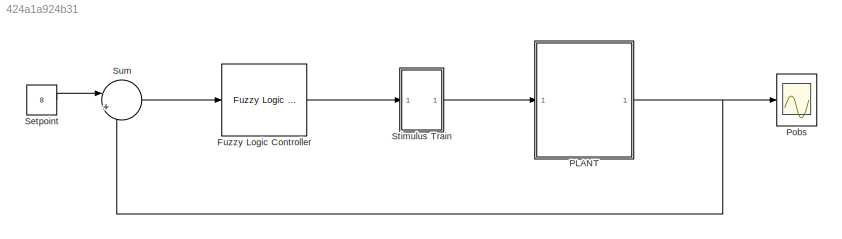
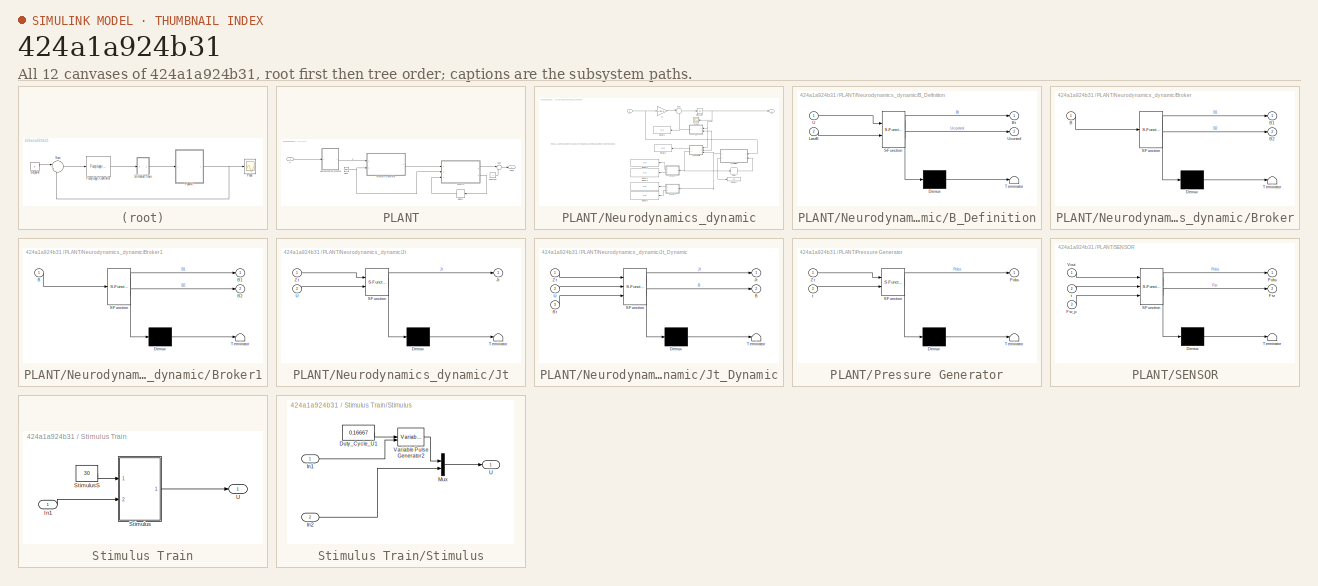
[diagram: thumbnail index - all 12 canvases of the model, root first then tree order]
MODEL slx_424a1a924b31
KIND model
CONFIG AbsTol = auto
CONFIG EnableMultiTasking = off
CONFIG FixedStep = auto
CONFIG MaxStep = auto
CONFIG MinStep = auto
CONFIG RelTol = 1e-3
CONFIG SampleTimeConstraint = Unconstrained
CONFIG SolverName = VariableStepAuto
CONFIG StartTime = 0.0
CONFIG StopTime = 75
BLOCK [Reference] Fuzzy Logic Controller  REF=fuzblock/Fuzzy Logic   (lib defined in mdl_858b3b3e7478)
Controller
  Ports = [1, 1]
  SourceBlock = fuzblock/Fuzzy Logic \nController
  SourceProductBaseCode = FL
  SourceType = Fuzzy Inference System
BLOCK [SubSystem] PLANT
  Ports = [1, 1]
  RequestExecContextInheritance = off
BLOCK [Clock] PLANT/Clock
BLOCK [Constant] PLANT/Constant
  Value = -1
BLOCK [Delay] PLANT/Delay2
  DelayLength = 1
  InitialCondition = 0.0001
  InputPortMap = u0
  Ports = [1, 1]
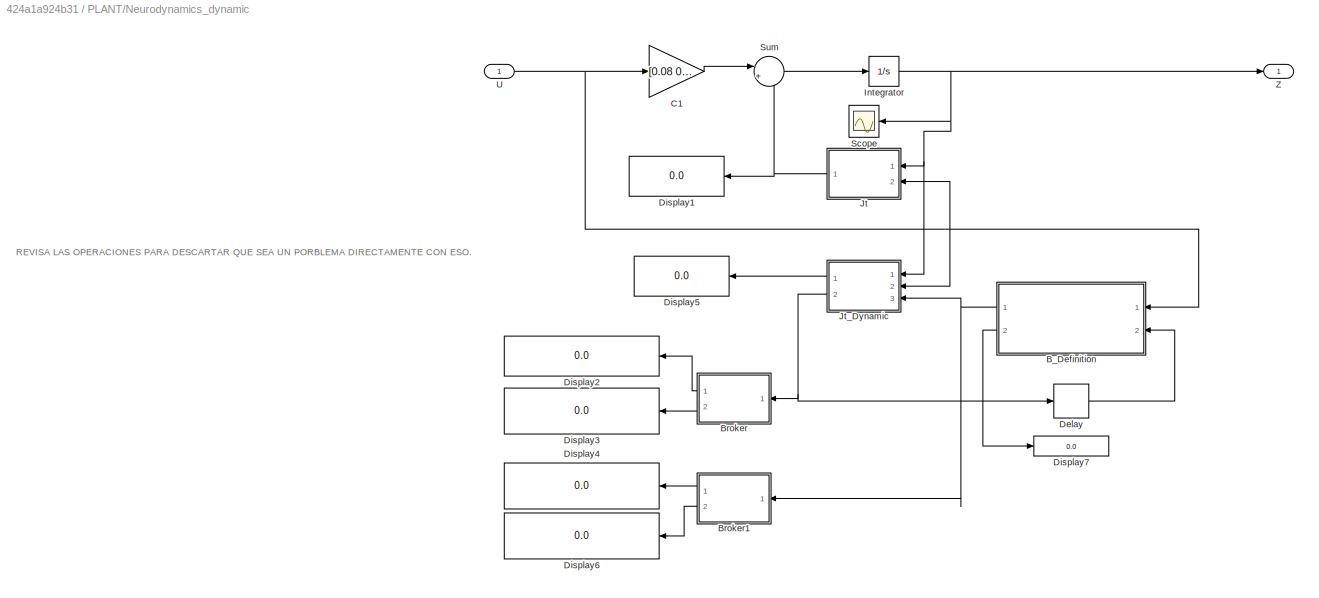
BLOCK [SubSystem] PLANT/Neurodynamics_dynamic
  Ports = [1, 1]
  RequestExecContextInheritance = off
BLOCK [SubSystem] PLANT/Neurodynamics_dynamic/B_Definition
  Commented = on
  ErrorFcn = Stateflow.Translate.translate
  PermitHierarchicalResolution = ExplicitOnly
  Ports = [2, 2]
  RequestExecContextInheritance = off
  SFBlockType = MATLAB Function
  TreatAsAtomicUnit = on
BLOCK [Demux] PLANT/Neurodynamics_dynamic/B_Definition/ Demux 
  Outputs = 1
  Ports = [1, 1]
BLOCK [S-Function] PLANT/Neurodynamics_dynamic/B_Definition/ SFunction 
  EnableBusSupport = on
  FunctionName = sf_sfun
  PortCounts = [2 3]
  Ports = [2, 3]
  SFcnIsStateOwnerBlock = off
  SFunctionDeploymentMode = off
  Tag = Stateflow S-Function 10
BLOCK [Terminator] PLANT/Neurodynamics_dynamic/B_Definition/ Terminator 
BLOCK [Outport] PLANT/Neurodynamics_dynamic/B_Definition/Bt
BLOCK [Inport] PLANT/Neurodynamics_dynamic/B_Definition/LastB
  Port = 2
BLOCK [Inport] PLANT/Neurodynamics_dynamic/B_Definition/U
BLOCK [Outport] PLANT/Neurodynamics_dynamic/B_Definition/Ucontrol
  Port = 2
BLOCK [SubSystem] PLANT/Neurodynamics_dynamic/Broker
  Commented = on
  ErrorFcn = Stateflow.Translate.translate
  PermitHierarchicalResolution = ExplicitOnly
  Ports = [1, 2]
  RequestExecContextInheritance = off
  SFBlockType = MATLAB Function
  TreatAsAtomicUnit = on
BLOCK [Demux] PLANT/Neurodynamics_dynamic/Broker/ Demux 
  Outputs = 1
  Ports = [1, 1]
BLOCK [S-Function] PLANT/Neurodynamics_dynamic/Broker/ SFunction 
  EnableBusSupport = on
  FunctionName = sf_sfun
  PortCounts = [1 3]
  Ports = [1, 3]
  SFcnIsStateOwnerBlock = off
  SFunctionDeploymentMode = off
  Tag = Stateflow S-Function 3
BLOCK [Terminator] PLANT/Neurodynamics_dynamic/Broker/ Terminator 
BLOCK [Inport] PLANT/Neurodynamics_dynamic/Broker/B
BLOCK [Outport] PLANT/Neurodynamics_dynamic/Broker/B1
BLOCK [Outport] PLANT/Neurodynamics_dynamic/Broker/B2
  Port = 2
BLOCK [SubSystem] PLANT/Neurodynamics_dynamic/Broker1
  Commented = on
  ErrorFcn = Stateflow.Translate.translate
  PermitHierarchicalResolution = ExplicitOnly
  Ports = [1, 2]
  RequestExecContextInheritance = off
  SFBlockType = MATLAB Function
  TreatAsAtomicUnit = on
BLOCK [Demux] PLANT/Neurodynamics_dynamic/Broker1/ Demux 
  Outputs = 1
  Ports = [1, 1]
BLOCK [S-Function] PLANT/Neurodynamics_dynamic/Broker1/ SFunction 
  EnableBusSupport = on
  FunctionName = sf_sfun
  PortCounts = [1 3]
  Ports = [1, 3]
  SFcnIsStateOwnerBlock = off
  SFunctionDeploymentMode = off
  Tag = Stateflow S-Function 6
BLOCK [Terminator] PLANT/Neurodynamics_dynamic/Broker1/ Terminator 
BLOCK [Inport] PLANT/Neurodynamics_dynamic/Broker1/B
BLOCK [Outport] PLANT/Neurodynamics_dynamic/Broker1/B1
BLOCK [Outport] PLANT/Neurodynamics_dynamic/Broker1/B2
  Port = 2
BLOCK [Gain] PLANT/Neurodynamics_dynamic/C1
  Gain = [0.08 0;0.06 0]
  Multiplication = Matrix(K*u)
BLOCK [Delay] PLANT/Neurodynamics_dynamic/Delay
  Commented = on
  DelayLength = 1
  InitialCondition = 0
  InputPortMap = u0
  NameLocation = top
  Ports = [1, 1]
BLOCK [Display] PLANT/Neurodynamics_dynamic/Display1
  Decimation = 1
  Ports = [1]
BLOCK [Display] PLANT/Neurodynamics_dynamic/Display2
  Commented = on
  Decimation = 1
  Ports = [1]
BLOCK [Display] PLANT/Neurodynamics_dynamic/Display3
  Commented = on
  Decimation = 1
  Ports = [1]
BLOCK [Display] PLANT/Neurodynamics_dynamic/Display4
  Commented = on
  Decimation = 1
  Ports = [1]
BLOCK [Display] PLANT/Neurodynamics_dynamic/Display5
  Commented = on
  Decimation = 1
  Ports = [1]
BLOCK [Display] PLANT/Neurodynamics_dynamic/Display6
  Commented = on
  Decimation = 1
  Ports = [1]
BLOCK [Display] PLANT/Neurodynamics_dynamic/Display7
  Commented = on
  Decimation = 1
  Ports = [1]
BLOCK [Integrator] PLANT/Neurodynamics_dynamic/Integrator
  Ports = [1, 1]
BLOCK [SubSystem] PLANT/Neurodynamics_dynamic/Jt
  ErrorFcn = Stateflow.Translate.translate
  PermitHierarchicalResolution = ExplicitOnly
  Ports = [2, 1]
  RequestExecContextInheritance = off
  SFBlockType = MATLAB Function
  TreatAsAtomicUnit = on
BLOCK [Demux] PLANT/Neurodynamics_dynamic/Jt/ Demux 
  Outputs = 1
  Ports = [1, 1]
BLOCK [S-Function] PLANT/Neurodynamics_dynamic/Jt/ SFunction 
  EnableBusSupport = on
  FunctionName = sf_sfun
  PortCounts = [2 2]
  Ports = [2, 2]
  SFcnIsStateOwnerBlock = off
  SFunctionDeploymentMode = off
  Tag = Stateflow S-Function 11
BLOCK [Terminator] PLANT/Neurodynamics_dynamic/Jt/ Terminator 
BLOCK [Outport] PLANT/Neurodynamics_dynamic/Jt/Jt
BLOCK [Inport] PLANT/Neurodynamics_dynamic/Jt/U
  Port = 2
BLOCK [Inport] PLANT/Neurodynamics_dynamic/Jt/Zt
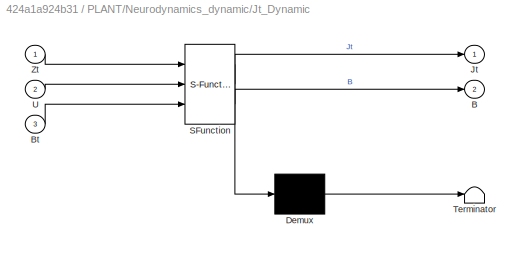
BLOCK [SubSystem] PLANT/Neurodynamics_dynamic/Jt_Dynamic
  Commented = on
  ErrorFcn = Stateflow.Translate.translate
  PermitHierarchicalResolution = ExplicitOnly
  Ports = [3, 2]
  RequestExecContextInheritance = off
  SFBlockType = MATLAB Function
  TreatAsAtomicUnit = on
BLOCK [Demux] PLANT/Neurodynamics_dynamic/Jt_Dynamic/ Demux 
  Outputs = 1
  Ports = [1, 1]
BLOCK [S-Function] PLANT/Neurodynamics_dynamic/Jt_Dynamic/ SFunction 
  EnableBusSupport = on
  FunctionName = sf_sfun
  PortCounts = [3 3]
  Ports = [3, 3]
  SFcnIsStateOwnerBlock = off
  SFunctionDeploymentMode = off
  Tag = Stateflow S-Function 9
BLOCK [Terminator] PLANT/Neurodynamics_dynamic/Jt_Dynamic/ Terminator 
BLOCK [Outport] PLANT/Neurodynamics_dynamic/Jt_Dynamic/B
  Port = 2
BLOCK [Inport] PLANT/Neurodynamics_dynamic/Jt_Dynamic/Bt
  Port = 3
BLOCK [Outport] PLANT/Neurodynamics_dynamic/Jt_Dynamic/Jt
BLOCK [Inport] PLANT/Neurodynamics_dynamic/Jt_Dynamic/U
  Port = 2
BLOCK [Inport] PLANT/Neurodynamics_dynamic/Jt_Dynamic/Zt
BLOCK [Scope] PLANT/Neurodynamics_dynamic/Scope
  Floating = off
  NumInputPorts = 1
  Ports = [1]
  ScopeSpecificationString = Simulink.scopes.TimeScopeBlockCfg('CurrentConfiguration', extmgr.ConfigurationSet(extmgr.Configuration('Core','General UI',true),extmgr.Configuration('Core','Source UI',true),extmgr.Configuration('Sources','WiredSimulink',true,'DataLoggingVariableName','ScopeData1'),extmgr.Configuration('Visuals','Time Domain',true,'SerializedDisplays',{struct('MinYLimReal','-270.33117','MaxYLimReal','30.99894','Y...<+1427ch>
BLOCK [Sum] PLANT/Neurodynamics_dynamic/Sum
  Inputs = |++
  Ports = [2, 1]
BLOCK [Inport] PLANT/Neurodynamics_dynamic/U
BLOCK [Outport] PLANT/Neurodynamics_dynamic/Z
BLOCK [Outport] PLANT/Pobs
BLOCK [SubSystem] PLANT/Pressure Generator
  ErrorFcn = Stateflow.Translate.translate
  PermitHierarchicalResolution = ExplicitOnly
  Ports = [2, 1]
  RequestExecContextInheritance = off
  SFBlockType = MATLAB Function
  TreatAsAtomicUnit = on
BLOCK [Demux] PLANT/Pressure Generator/ Demux 
  Outputs = 1
  Ports = [1, 1]
BLOCK [S-Function] PLANT/Pressure Generator/ SFunction 
  EnableBusSupport = on
  FunctionName = sf_sfun
  PortCounts = [2 2]
  Ports = [2, 2]
  SFcnIsStateOwnerBlock = off
  SFunctionDeploymentMode = off
  Tag = Stateflow S-Function 2
BLOCK [Terminator] PLANT/Pressure Generator/ Terminator 
BLOCK [Outport] PLANT/Pressure Generator/Pobs
BLOCK [Inport] PLANT/Pressure Generator/Zt
BLOCK [Inport] PLANT/Pressure Generator/t
  Port = 2
BLOCK [SubSystem] PLANT/SENSOR
  ErrorFcn = Stateflow.Translate.translate
  PermitHierarchicalResolution = ExplicitOnly
  Ports = [3, 2]
  RequestExecContextInheritance = off
  SFBlockType = MATLAB Function
  TreatAsAtomicUnit = on
BLOCK [Demux] PLANT/SENSOR/ Demux 
  Outputs = 1
  Ports = [1, 1]
BLOCK [S-Function] PLANT/SENSOR/ SFunction 
  EnableBusSupport = on
  FunctionName = sf_sfun
  PortCounts = [3 3]
  Ports = [3, 3]
  SFcnIsStateOwnerBlock = off
  SFunctionDeploymentMode = off
  Tag = Stateflow S-Function 1
BLOCK [Terminator] PLANT/SENSOR/ Terminator 
BLOCK [Outport] PLANT/SENSOR/Fsr
  Port = 2
BLOCK [Inport] PLANT/SENSOR/Fsr_p
  Port = 3
BLOCK [Outport] PLANT/SENSOR/Pobs
BLOCK [Inport] PLANT/SENSOR/Vout
BLOCK [Inport] PLANT/SENSOR/t
  Port = 2
BLOCK [Sum] PLANT/Sum
  Inputs = |+-
  Ports = [2, 1]
BLOCK [Inport] PLANT/U
BLOCK [Scope] Pobs
  Floating = off
  NumInputPorts = 1
  Ports = [1]
  ScopeSpecificationString = Simulink.scopes.TimeScopeBlockCfg('CurrentConfiguration', extmgr.ConfigurationSet(extmgr.Configuration('Core','General UI',true,'FigureColor',[1 1 1]),extmgr.Configuration('Core','Source UI',true),extmgr.Configuration('Sources','WiredSimulink',true,'DataLoggingVariableName','ScopeData2'),extmgr.Configuration('Visuals','Time Domain',true,'SerializedDisplays',{struct('MinYLimReal','-1.2817','MaxYLim...<+1535ch>
BLOCK [Constant] Setpoint
  Value = 8
BLOCK [SubSystem] Stimulus Train
  Ports = [1, 1]
  RequestExecContextInheritance = off
BLOCK [Inport] Stimulus Train/In1
BLOCK [SubSystem] Stimulus Train/Stimulus
  Ports = [2, 1]
  RequestExecContextInheritance = off
BLOCK [Constant] Stimulus Train/Stimulus/Duty_Cycle_U1
  OutMax = [0.8]
  OutMin = [0]
  Value = 0.16667
BLOCK [Inport] Stimulus Train/Stimulus/In1
BLOCK [Inport] Stimulus Train/Stimulus/In2
  Port = 2
BLOCK [Mux] Stimulus Train/Stimulus/Mux
  DisplayOption = bar
  Inputs = 2
  Ports = [2, 1]
BLOCK [Outport] Stimulus Train/Stimulus/U
BLOCK [VariablePulseGenerator] Stimulus Train/Stimulus/Variable Pulse Generator2
  RunAtFixedTimeIntervals = on
  SampleTime = 1/10.4
BLOCK [Constant] Stimulus Train/StimulusS
  Value = 30
BLOCK [Outport] Stimulus Train/U
BLOCK [Sum] Sum
  Inputs = |+-
  Ports = [2, 1]
ANNOTATION PLANT/Neurodynamics_dynamic: REVISA LAS OPERACIONES PARA DESCARTAR QUE SEA UN PORBLEMA DIRECTAMENTE CON ESO.
LINE Fuzzy Logic Controller:1 -> Stimulus Train:1
NET PLANT/Clock:1 -> PLANT/Pressure Generator:2, PLANT/SENSOR:2
LINE PLANT/Constant:1 -> PLANT/Sum:2
LINE PLANT/Delay2:1 -> PLANT/SENSOR:3
NET PLANT/Neurodynamics_dynamic/B_Definition:1 -> PLANT/Neurodynamics_dynamic/Broker1:1, PLANT/Neurodynamics_dynamic/Jt_Dynamic:3
LINE PLANT/Neurodynamics_dynamic/B_Definition:2 -> PLANT/Neurodynamics_dynamic/Display7:1
LINE PLANT/Neurodynamics_dynamic/Broker1:1 -> PLANT/Neurodynamics_dynamic/Display4:1
LINE PLANT/Neurodynamics_dynamic/Broker1:2 -> PLANT/Neurodynamics_dynamic/Display6:1
LINE PLANT/Neurodynamics_dynamic/Broker:1 -> PLANT/Neurodynamics_dynamic/Display2:1
LINE PLANT/Neurodynamics_dynamic/Broker:2 -> PLANT/Neurodynamics_dynamic/Display3:1
LINE PLANT/Neurodynamics_dynamic/C1:1 -> PLANT/Neurodynamics_dynamic/Sum:1
LINE PLANT/Neurodynamics_dynamic/Delay:1 -> PLANT/Neurodynamics_dynamic/B_Definition:2
NET PLANT/Neurodynamics_dynamic/Integrator:1 -> PLANT/Neurodynamics_dynamic/Jt:1, PLANT/Neurodynamics_dynamic/Jt_Dynamic:1, PLANT/Neurodynamics_dynamic/Scope:1, PLANT/Neurodynamics_dynamic/Z:1
NET PLANT/Neurodynamics_dynamic/Jt:1 -> PLANT/Neurodynamics_dynamic/Display1:1, PLANT/Neurodynamics_dynamic/Sum:2
LINE PLANT/Neurodynamics_dynamic/Jt_Dynamic:1 -> PLANT/Neurodynamics_dynamic/Display5:1
NET PLANT/Neurodynamics_dynamic/Jt_Dynamic:2 -> PLANT/Neurodynamics_dynamic/Broker:1, PLANT/Neurodynamics_dynamic/Delay:1
LINE PLANT/Neurodynamics_dynamic/Sum:1 -> PLANT/Neurodynamics_dynamic/Integrator:1
NET PLANT/Neurodynamics_dynamic/U:1 -> PLANT/Neurodynamics_dynamic/B_Definition:1, PLANT/Neurodynamics_dynamic/C1:1, PLANT/Neurodynamics_dynamic/Jt:2, PLANT/Neurodynamics_dynamic/Jt_Dynamic:2
LINE PLANT/Neurodynamics_dynamic:1 -> PLANT/Pressure Generator:1
LINE PLANT/Pressure Generator:1 -> PLANT/SENSOR:1
LINE PLANT/SENSOR:1 -> PLANT/Sum:1
LINE PLANT/SENSOR:2 -> PLANT/Delay2:1
LINE PLANT/Sum:1 -> PLANT/Pobs:1
LINE PLANT/U:1 -> PLANT/Neurodynamics_dynamic:1
NET PLANT:1 -> Pobs:1, Sum:2
LINE Setpoint:1 -> Sum:1
LINE Stimulus Train/In1:1 -> Stimulus Train/Stimulus:2
LINE Stimulus Train/Stimulus/Duty_Cycle_U1:1 -> Stimulus Train/Stimulus/Variable Pulse Generator2:1
LINE Stimulus Train/Stimulus/In1:1 -> Stimulus Train/Stimulus/Variable Pulse Generator2:2
LINE Stimulus Train/Stimulus/In2:1 -> Stimulus Train/Stimulus/Mux:2
LINE Stimulus Train/Stimulus/Mux:1 -> Stimulus Train/Stimulus/U:1
LINE Stimulus Train/Stimulus/Variable Pulse Generator2:1 -> Stimulus Train/Stimulus/Mux:1
LINE Stimulus Train/Stimulus:1 -> Stimulus Train/U:1
LINE Stimulus Train/StimulusS:1 -> Stimulus Train/Stimulus:1
LINE Stimulus Train:1 -> PLANT:1
LINE Sum:1 -> Fuzzy Logic Controller:1
note: NET lines group one-source signal fan-out (src -> all destinations, sorted); 1:1 wires keep LINE
CHART PLANT/SENSOR states=1 transitions=1
  STATE_LABEL 'eML_blk_kernel()'
  STATE_LABEL 'SCRIPT:\nfunction [Pobs,Fsr] = PressureGenerator_sensor(Vout, t,Fsr_p)\n\n    Vcc = 50; %Considering 5V as a real sensor, the value is on mV\n    Rf = 100; %Fixed resistor 10k ohms\n    kgf = 0.1019716213; % 1N = 0.1019716213 kgf\n    Fsr = 0;\n    Fsrforce = 0;\n  \n    Fsr = (Vcc - Vout * Rf) / Vout;\n    FsConductance = 1000000; %Sensor conductance in uOhms\n    FsConductance = FsConductance / Fsr;\n    if...<+221ch>'
CHART PLANT/Pressure Generator states=1 transitions=1
  STATE_LABEL 'eML_blk_kernel()'
  STATE_LABEL 'SCRIPT:\nfunction Pobs  = fcn(Zt, t)\n    R=1000; %Resistor [Ohms];\n    C= 2; %Capacitor [Faradays];\n    V= Zt(1); %Voltage or system reference;\n    Vc = V * (exp(-t/(R*C))); % Voltage at the capacitor  \n    \nPobs = Vc;\n'
CHART PLANT/Neurodynamics_dynamic/Broker states=1 transitions=1
  STATE_LABEL 'eML_blk_kernel()'
  STATE_LABEL 'SCRIPT:\nfunction [B1, B2] = fcn(B)\nB1 = B(:,:,1);\nB2 = B(:,:,2);'
CHART PLANT/Neurodynamics_dynamic/Broker1 states=1 transitions=1
  STATE_LABEL 'eML_blk_kernel()'
  STATE_LABEL 'SCRIPT:\nfunction [B1, B2] = fcn(B)\nB1 = B(:,:,1);\nB2 = B(:,:,2);'
CHART PLANT/Neurodynamics_dynamic/Jt_Dynamic states=1 transitions=1
  STATE_LABEL 'eML_blk_kernel()'
  STATE_LABEL 'SCRIPT:\nfunction [Jt, B] = fcn(Zt, U, Bt)\n\n   A = [-0.16 -0.49;-0.02 -0.33];\n   nRegions  = size(A,1);\n\n   B = zeros(2,2,2);\n   a = 0;\n   B1 = [0 0; 0 0]; %There must be a B per stimulus\n   B2 = [-0.02 -0.77; 0.33 -1.31];\n\n   if Bt(:,:,2) ~= B(:,:,2)\n       B(:,:,:) = Bt(:,:,:);\n   else\n          B(:,:,1) = B1;\n          B(:,:,2) = B2;\n   end\n   M = size(U,1); %nStimuli\n   assert(M == size(B,3),.....<+453ch>'
CHART PLANT/Neurodynamics_dynamic/B_Definition states=1 transitions=1
  STATE_LABEL 'eML_blk_kernel()'
  STATE_LABEL 'SCRIPT:\nfunction [Bt, Ucontrol] = B_Definition(U, LastB)\n    Bt = zeros(2, 2, 2);\n   %Control extraction and weight\n   Ucontrol = U(2) * (0.1 + rand(1) * (1-0.1));\n   Threshold = 0.1;\n    if(Ucontrol < Threshold) %Random Ucontrol to test\n        min = -1.5; \n        max =0.5;\n        n = 2;\n        r1 = min + rand(n)*(max-min);\n        r2 = min + rand(n)*(max-min);\n        %Bt(:,:,1) = r1(:,:);\n  ...<+70ch>'
CHART PLANT/Neurodynamics_dynamic/Jt states=1 transitions=1
  STATE_LABEL 'eML_blk_kernel()'
  STATE_LABEL "SCRIPT:\nfunction Jt = fcn(Zt, U)\n   A = [-0.16 -0.49;-0.02 -0.33];\n   nRegions  = size(A,1);\n   M = size(U,1); %nStimuli\n   simulationLength = size(U,2);\n   B = zeros(2,2,2);\n   B1 = [0 0; 0 0]; %There must be a B per stimulus\n   B2 = [-0.02 -0.77;\n       0.33 -1.31];\n   B(:,:,1) = B1;\n   B(:,:,2) = B2;\n      assert(M == size(B,3),...\n       'Unexpected number of induced connectivity parameters B....<+298ch>"
CHART  states=0 transitions=0
CHART  states=0 transitions=0
CHART  states=0 transitions=0
CHART  states=0 transitions=0
CHART  states=0 transitions=0
CHART  states=0 transitions=0
CHART  states=0 transitions=0
